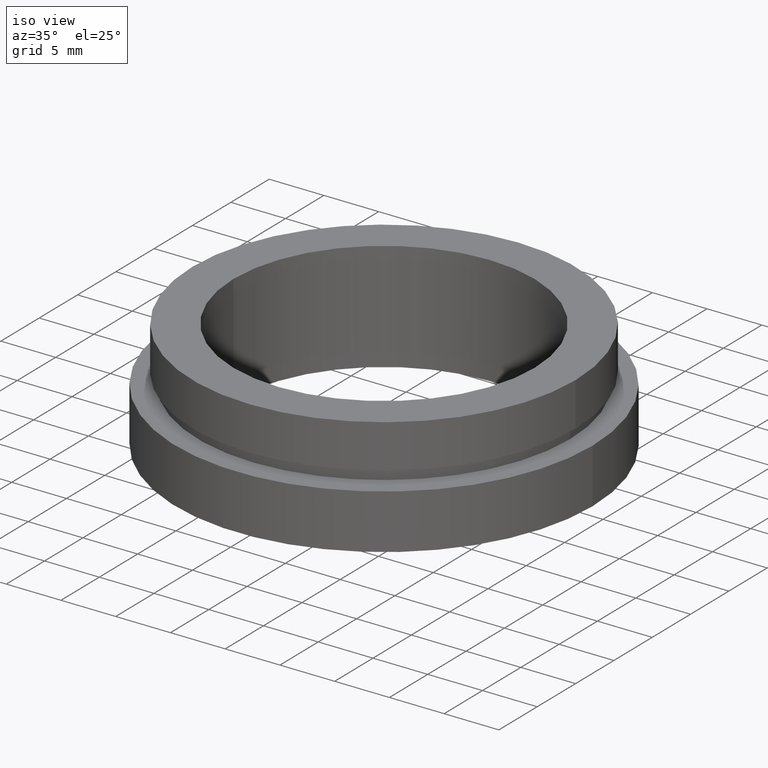
[diagram: clean part render]
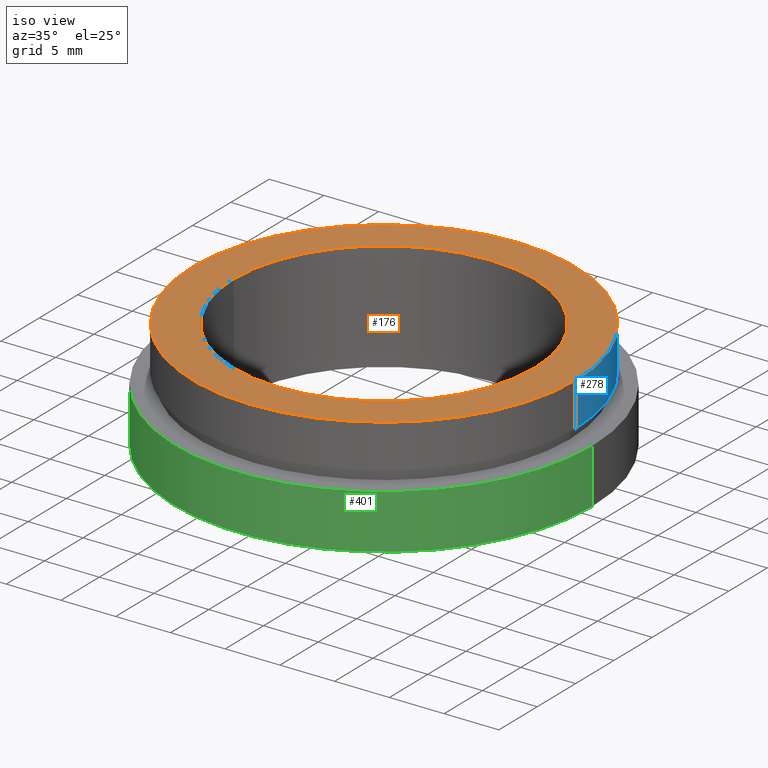
[diagram: same view with three faces highlighted in distinct colors, each labeled with its STEP entity id]
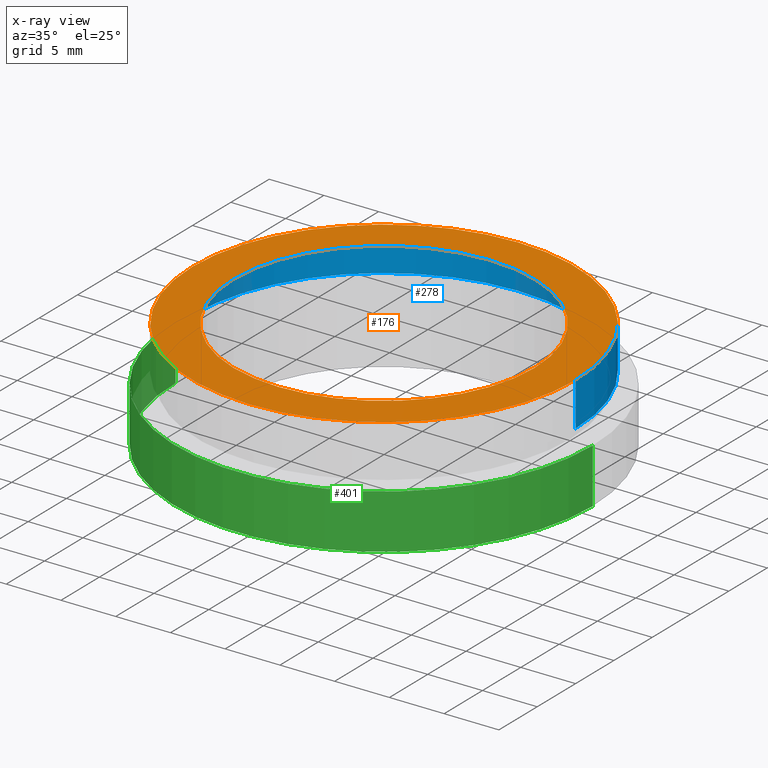
[diagram: x-ray of the same camera — body ghosted, the three highlighted faces saturated]
A machine part, iso view with three faces highlighted in distinct colors.
The next image is the same camera in x-ray (body ghosted, the three faces saturated) — at least one of them is partly hidden behind the body in this view.
Their STEP definitions:

[orange] entity #176 — the highlighted planar face has unit normal (-0, 0, -1).
#8 = CARTESIAN_POINT ( 'NONE',  ( -13.75000000000000400, 0.0000000000000000000, 0.0000000000000000000 ) ) ;
#12 = FACE_OUTER_BOUND ( 'NONE', #78, .T. ) ;
#63 = CARTESIAN_POINT ( 'NONE',  ( 0.0000000000000000000, 0.0000000000000000000, 0.0000000000000000000 ) ) ;
#65 = AXIS2_PLACEMENT_3D ( 'NONE', #205, #188, #369 ) ;
#73 = EDGE_LOOP ( 'NONE', ( #122, #153 ) ) ;
#77 = CARTESIAN_POINT ( 'NONE',  ( 0.0000000000000000000, 0.0000000000000000000, 0.0000000000000000000 ) ) ;
#78 = EDGE_LOOP ( 'NONE', ( #200, #197 ) ) ;
#85 = CIRCLE ( 'NONE', #106, 13.75000000000000400 ) ;
#97 = VERTEX_POINT ( 'NONE', #120 ) ;
#106 = AXIS2_PLACEMENT_3D ( 'NONE', #63, #287, #332 ) ;
#110 = VERTEX_POINT ( 'NONE', #8 ) ;
#120 = CARTESIAN_POINT ( 'NONE',  ( -17.50000000000000400, 0.0000000000000000000, 0.0000000000000000000 ) ) ;
#121 = VERTEX_POINT ( 'NONE', #359 ) ;
#122 = ORIENTED_EDGE ( 'NONE', *, *, #169, .T. ) ;
#133 = AXIS2_PLACEMENT_3D ( 'NONE', #77, #170, #363 ) ;
#150 = VERTEX_POINT ( 'NONE', #433 ) ;
#153 = ORIENTED_EDGE ( 'NONE', *, *, #333, .T. ) ;
#169 = EDGE_CURVE ( 'NONE', #110, #121, #85, .T. ) ;
#170 = DIRECTION ( 'NONE',  ( -0.0000000000000000000, -0.0000000000000000000, -1.000000000000000000 ) ) ;
#176 = ADVANCED_FACE ( 'NONE', ( #12, #432 ), #280, .F. ) ;
#188 = DIRECTION ( 'NONE',  ( -0.0000000000000000000, 0.0000000000000000000, -1.000000000000000000 ) ) ;
#197 = ORIENTED_EDGE ( 'NONE', *, *, #321, .F. ) ;
#198 = DIRECTION ( 'NONE',  ( -0.0000000000000000000, -0.0000000000000000000, -1.000000000000000000 ) ) ;
#200 = ORIENTED_EDGE ( 'NONE', *, *, #313, .F. ) ;
#204 = CARTESIAN_POINT ( 'NONE',  ( 0.0000000000000000000, 0.0000000000000000000, 0.0000000000000000000 ) ) ;
#205 = CARTESIAN_POINT ( 'NONE',  ( 13.75000000000000400, 0.0000000000000000000, 0.0000000000000000000 ) ) ;
#220 = DIRECTION ( 'NONE',  ( -1.000000000000000000, 0.0000000000000000000, 0.0000000000000000000 ) ) ;
#274 = AXIS2_PLACEMENT_3D ( 'NONE', #426, #198, #220 ) ;
#277 = CIRCLE ( 'NONE', #274, 17.50000000000000400 ) ;
#280 = PLANE ( 'NONE',  #65 ) ;
#283 = CIRCLE ( 'NONE', #325, 17.50000000000000400 ) ;
#287 = DIRECTION ( 'NONE',  ( -0.0000000000000000000, -0.0000000000000000000, -1.000000000000000000 ) ) ;
#302 = CIRCLE ( 'NONE', #133, 13.75000000000000400 ) ;
#313 = EDGE_CURVE ( 'NONE', #97, #150, #283, .T. ) ;
#321 = EDGE_CURVE ( 'NONE', #150, #97, #277, .T. ) ;
#325 = AXIS2_PLACEMENT_3D ( 'NONE', #204, #346, #404 ) ;
#332 = DIRECTION ( 'NONE',  ( -1.000000000000000000, 0.0000000000000000000, 0.0000000000000000000 ) ) ;
#333 = EDGE_CURVE ( 'NONE', #121, #110, #302, .T. ) ;
#346 = DIRECTION ( 'NONE',  ( -0.0000000000000000000, -0.0000000000000000000, -1.000000000000000000 ) ) ;
#359 = CARTESIAN_POINT ( 'NONE',  ( 13.75000000000000400, 1.683889348827611200E-015, 0.0000000000000000000 ) ) ;
#363 = DIRECTION ( 'NONE',  ( -1.000000000000000000, 0.0000000000000000000, 0.0000000000000000000 ) ) ;
#369 = DIRECTION ( 'NONE',  ( -1.000000000000000000, 0.0000000000000000000, 0.0000000000000000000 ) ) ;
#404 = DIRECTION ( 'NONE',  ( -1.000000000000000000, 0.0000000000000000000, 0.0000000000000000000 ) ) ;
#426 = CARTESIAN_POINT ( 'NONE',  ( 0.0000000000000000000, 0.0000000000000000000, 0.0000000000000000000 ) ) ;
#432 = FACE_BOUND ( 'NONE', #73, .T. ) ;
#433 = CARTESIAN_POINT ( 'NONE',  ( 17.50000000000000400, 2.143131898507868600E-015, 0.0000000000000000000 ) ) ;

[blue] entity #278 — the highlighted cylindrical surface (partial cylindrical patch) has radius 17.5 mm, axis along (-0, -0, -1).
#7 = DIRECTION ( 'NONE',  ( -1.000000000000000000, 0.0000000000000000000, 0.0000000000000000000 ) ) ;
#48 = CARTESIAN_POINT ( 'NONE',  ( -17.50000000000000400, 0.0000000000000000000, -4.000000000000000000 ) ) ;
#53 = ORIENTED_EDGE ( 'NONE', *, *, #149, .F. ) ;
#97 = VERTEX_POINT ( 'NONE', #120 ) ;
#113 = VERTEX_POINT ( 'NONE', #48 ) ;
#115 = EDGE_LOOP ( 'NONE', ( #378, #186, #166, #53 ) ) ;
#120 = CARTESIAN_POINT ( 'NONE',  ( -17.50000000000000400, 0.0000000000000000000, 0.0000000000000000000 ) ) ;
#128 = CARTESIAN_POINT ( 'NONE',  ( 17.50000000000000400, 2.143131898507868600E-015, -4.000000000000000000 ) ) ;
#139 = AXIS2_PLACEMENT_3D ( 'NONE', #180, #380, #7 ) ;
#149 = EDGE_CURVE ( 'NONE', #97, #113, #206, .T. ) ;
#150 = VERTEX_POINT ( 'NONE', #433 ) ;
#166 = ORIENTED_EDGE ( 'NONE', *, *, #353, .F. ) ;
#173 = VECTOR ( 'NONE', #350, 1000.000000000000000 ) ;
#175 = CARTESIAN_POINT ( 'NONE',  ( -17.50000000000000400, 0.0000000000000000000, -19.14057971014493000 ) ) ;
#179 = CIRCLE ( 'NONE', #139, 17.50000000000000400 ) ;
#180 = CARTESIAN_POINT ( 'NONE',  ( 0.0000000000000000000, 0.0000000000000000000, -4.000000000000000000 ) ) ;
#186 = ORIENTED_EDGE ( 'NONE', *, *, #245, .T. ) ;
#189 = CARTESIAN_POINT ( 'NONE',  ( 17.50000000000000400, 2.143131898507868600E-015, -19.14057971014493000 ) ) ;
#204 = CARTESIAN_POINT ( 'NONE',  ( 0.0000000000000000000, 0.0000000000000000000, 0.0000000000000000000 ) ) ;
#206 = LINE ( 'NONE', #175, #173 ) ;
#243 = LINE ( 'NONE', #189, #324 ) ;
#245 = EDGE_CURVE ( 'NONE', #150, #251, #243, .T. ) ;
#251 = VERTEX_POINT ( 'NONE', #128 ) ;
#263 = DIRECTION ( 'NONE',  ( -0.0000000000000000000, -0.0000000000000000000, -1.000000000000000000 ) ) ;
#266 = DIRECTION ( 'NONE',  ( -0.0000000000000000000, -0.0000000000000000000, -1.000000000000000000 ) ) ;
#268 = FACE_OUTER_BOUND ( 'NONE', #115, .T. ) ;
#278 = ADVANCED_FACE ( 'NONE', ( #268 ), #293, .T. ) ;
#283 = CIRCLE ( 'NONE', #325, 17.50000000000000400 ) ;
#293 = CYLINDRICAL_SURFACE ( 'NONE', #374, 17.50000000000000400 ) ;
#313 = EDGE_CURVE ( 'NONE', #97, #150, #283, .T. ) ;
#324 = VECTOR ( 'NONE', #266, 1000.000000000000000 ) ;
#325 = AXIS2_PLACEMENT_3D ( 'NONE', #204, #346, #404 ) ;
#330 = CARTESIAN_POINT ( 'NONE',  ( 0.0000000000000000000, 0.0000000000000000000, -19.14057971014493000 ) ) ;
#346 = DIRECTION ( 'NONE',  ( -0.0000000000000000000, -0.0000000000000000000, -1.000000000000000000 ) ) ;
#350 = DIRECTION ( 'NONE',  ( -0.0000000000000000000, -0.0000000000000000000, -1.000000000000000000 ) ) ;
#353 = EDGE_CURVE ( 'NONE', #113, #251, #179, .T. ) ;
#374 = AXIS2_PLACEMENT_3D ( 'NONE', #330, #263, #386 ) ;
#378 = ORIENTED_EDGE ( 'NONE', *, *, #313, .T. ) ;
#380 = DIRECTION ( 'NONE',  ( -0.0000000000000000000, -0.0000000000000000000, -1.000000000000000000 ) ) ;
#386 = DIRECTION ( 'NONE',  ( -1.000000000000000000, 0.0000000000000000000, 0.0000000000000000000 ) ) ;
#404 = DIRECTION ( 'NONE',  ( -1.000000000000000000, 0.0000000000000000000, 0.0000000000000000000 ) ) ;
#433 = CARTESIAN_POINT ( 'NONE',  ( 17.50000000000000400, 2.143131898507868600E-015, 0.0000000000000000000 ) ) ;

[green] entity #401 — the highlighted cylindrical surface (partial cylindrical patch) has radius 19.05 mm, axis along (-0, -0, -1).
#9 = FACE_OUTER_BOUND ( 'NONE', #60, .T. ) ;
#26 = CARTESIAN_POINT ( 'NONE',  ( -19.05000000000000400, 0.0000000000000000000, -19.14057971014493000 ) ) ;
#31 = EDGE_CURVE ( 'NONE', #67, #261, #192, .T. ) ;
#39 = CARTESIAN_POINT ( 'NONE',  ( 0.0000000000000000000, 0.0000000000000000000, -19.14057971014493000 ) ) ;
#60 = EDGE_LOOP ( 'NONE', ( #405, #94, #354, #79 ) ) ;
#67 = VERTEX_POINT ( 'NONE', #308 ) ;
#79 = ORIENTED_EDGE ( 'NONE', *, *, #294, .F. ) ;
#88 = CARTESIAN_POINT ( 'NONE',  ( -19.05000000000000100, 0.0000000000000000000, -5.000000000000000900 ) ) ;
#94 = ORIENTED_EDGE ( 'NONE', *, *, #31, .T. ) ;
#143 = DIRECTION ( 'NONE',  ( -0.0000000000000000000, -0.0000000000000000000, -1.000000000000000000 ) ) ;
#151 = CARTESIAN_POINT ( 'NONE',  ( 0.0000000000000000000, 0.0000000000000000000, -10.00000000000000000 ) ) ;
#167 = DIRECTION ( 'NONE',  ( -0.0000000000000000000, -0.0000000000000000000, -1.000000000000000000 ) ) ;
#181 = EDGE_CURVE ( 'NONE', #67, #342, #290, .T. ) ;
#192 = CIRCLE ( 'NONE', #222, 19.05000000000000100 ) ;
#195 = CARTESIAN_POINT ( 'NONE',  ( 0.0000000000000000000, 0.0000000000000000000, -5.000000000000000900 ) ) ;
#209 = DIRECTION ( 'NONE',  ( -1.000000000000000000, 0.0000000000000000000, 0.0000000000000000000 ) ) ;
#221 = CARTESIAN_POINT ( 'NONE',  ( 19.05000000000000400, 2.332952152375708400E-015, -10.00000000000000000 ) ) ;
#222 = AXIS2_PLACEMENT_3D ( 'NONE', #195, #143, #209 ) ;
#227 = CARTESIAN_POINT ( 'NONE',  ( 19.05000000000000400, 2.332952152375708400E-015, -19.14057971014493000 ) ) ;
#236 = CARTESIAN_POINT ( 'NONE',  ( -19.05000000000000400, 0.0000000000000000000, -10.00000000000000000 ) ) ;
#249 = AXIS2_PLACEMENT_3D ( 'NONE', #151, #419, #421 ) ;
#260 = DIRECTION ( 'NONE',  ( -0.0000000000000000000, -0.0000000000000000000, -1.000000000000000000 ) ) ;
#261 = VERTEX_POINT ( 'NONE', #88 ) ;
#290 = LINE ( 'NONE', #227, #335 ) ;
#294 = EDGE_CURVE ( 'NONE', #342, #309, #300, .T. ) ;
#300 = CIRCLE ( 'NONE', #249, 19.05000000000000400 ) ;
#305 = VECTOR ( 'NONE', #167, 1000.000000000000000 ) ;
#308 = CARTESIAN_POINT ( 'NONE',  ( 19.05000000000000100, 2.332952152375708000E-015, -5.000000000000000900 ) ) ;
#309 = VERTEX_POINT ( 'NONE', #236 ) ;
#314 = DIRECTION ( 'NONE',  ( -1.000000000000000000, 0.0000000000000000000, 0.0000000000000000000 ) ) ;
#335 = VECTOR ( 'NONE', #260, 1000.000000000000000 ) ;
#340 = DIRECTION ( 'NONE',  ( -0.0000000000000000000, -0.0000000000000000000, -1.000000000000000000 ) ) ;
#342 = VERTEX_POINT ( 'NONE', #221 ) ;
#354 = ORIENTED_EDGE ( 'NONE', *, *, #383, .T. ) ;
#362 = LINE ( 'NONE', #26, #305 ) ;
#365 = CYLINDRICAL_SURFACE ( 'NONE', #412, 19.05000000000000400 ) ;
#383 = EDGE_CURVE ( 'NONE', #261, #309, #362, .T. ) ;
#401 = ADVANCED_FACE ( 'NONE', ( #9 ), #365, .T. ) ;
#405 = ORIENTED_EDGE ( 'NONE', *, *, #181, .F. ) ;
#412 = AXIS2_PLACEMENT_3D ( 'NONE', #39, #340, #314 ) ;
#419 = DIRECTION ( 'NONE',  ( -0.0000000000000000000, -0.0000000000000000000, -1.000000000000000000 ) ) ;
#421 = DIRECTION ( 'NONE',  ( -1.000000000000000000, 0.0000000000000000000, 0.0000000000000000000 ) ) ;